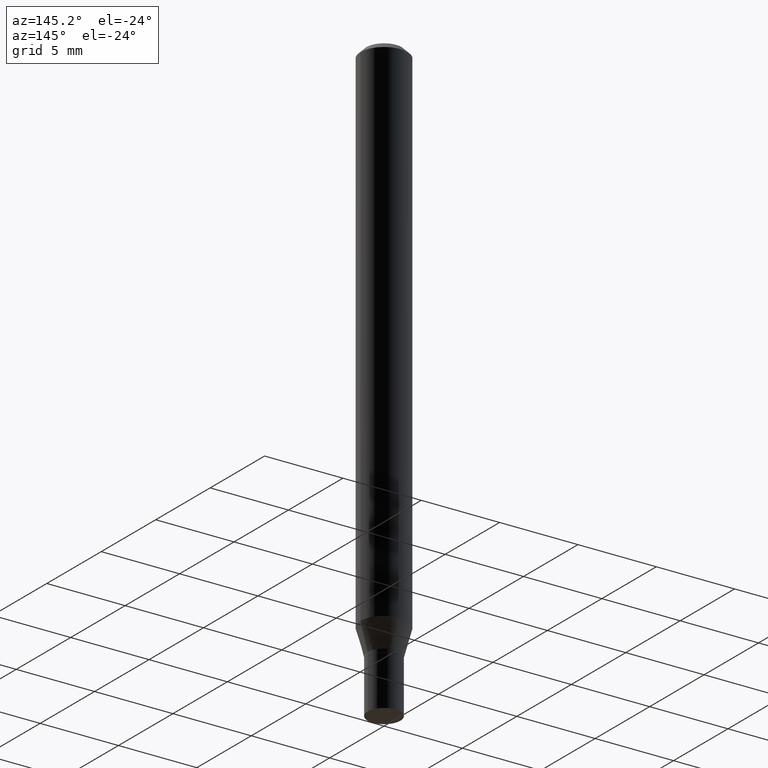
[diagram: clean part render]
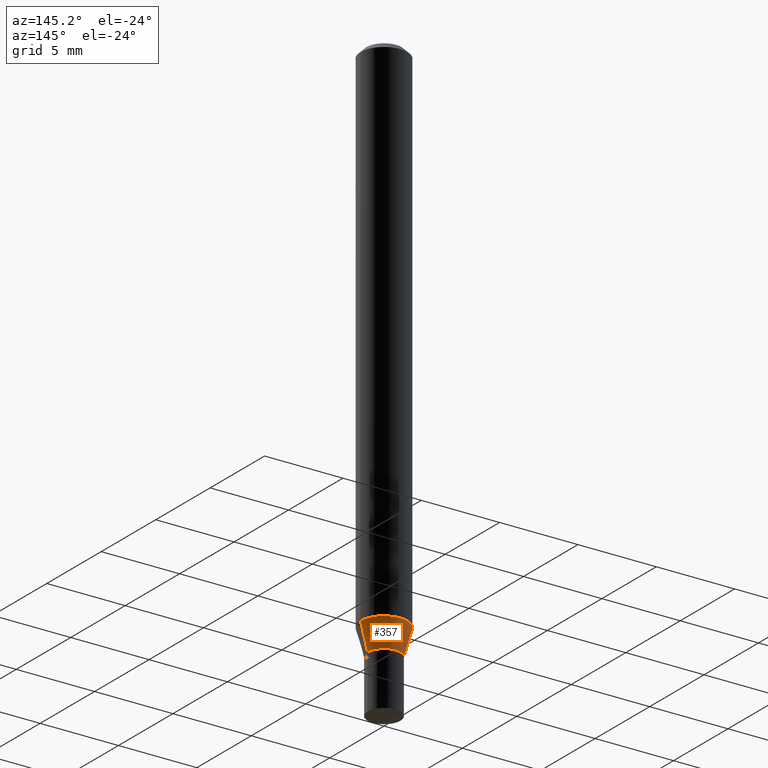
[diagram: same view with one face highlighted and labeled with its STEP entity id]
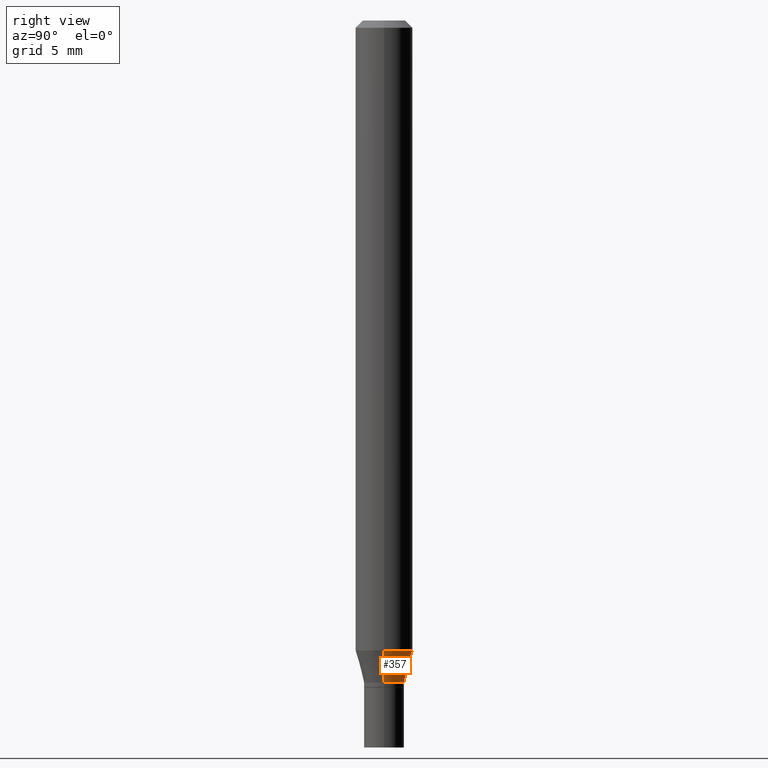
[diagram: same view with one face highlighted and labeled with its STEP entity id]
A machine part, auxiliary view. The second image highlights one B-rep face of the part: STEP entity #357.
A second angle (right view) of the same face is appended — the face is thin or edge-on in the first view.
In plain terms, the highlighted conical surface has half-angle 15 deg.
Its self-contained STEP definition (entity closure, byte-faithful):
#10 = DIRECTION ( 'NONE',  ( -0.2588190451025217387, 5.211531920934551042E-15, 0.9659258262890679791 ) ) ;
#11 = CARTESIAN_POINT ( 'NONE',  ( 3.178724777524041310E-29, -4.538376532946583262E-15, -1.299842700706030918 ) ) ;
#16 = LINE ( 'NONE', #411, #347 ) ;
#58 = EDGE_CURVE ( 'NONE', #437, #228, #16, .T. ) ;
#77 = CIRCLE ( 'NONE', #163, 0.05904999999999999832 ) ;
#109 = VECTOR ( 'NONE', #10, 39.37007874015748854 ) ;
#111 = CARTESIAN_POINT ( 'NONE',  ( -0.04134999999999992154, -4.297002993484647567E-15, -1.365900000000000114 ) ) ;
#122 = DIRECTION ( 'NONE',  ( 1.000000000000000000, -6.982962677686262766E-15, 0.000000000000000000 ) ) ;
#125 = LINE ( 'NONE', #184, #109 ) ;
#160 = EDGE_CURVE ( 'NONE', #228, #254, #77, .T. ) ;
#163 = AXIS2_PLACEMENT_3D ( 'NONE', #11, #192, #349 ) ;
#168 = AXIS2_PLACEMENT_3D ( 'NONE', #170, #289, #397 ) ;
#170 = CARTESIAN_POINT ( 'NONE',  ( 3.340265842368278094E-29, -4.769014360725852776E-15, -1.365900000000000114 ) ) ;
#178 = CARTESIAN_POINT ( 'NONE',  ( 0.05904999999999999832, -4.950720479063956605E-15, -1.299842700706030918 ) ) ;
#184 = CARTESIAN_POINT ( 'NONE',  ( -0.04134999999999992154, -4.475204939489051364E-15, -1.365900000000000114 ) ) ;
#192 = DIRECTION ( 'NONE',  ( -2.445468806185136597E-29, 3.491481338843145583E-15, 1.000000000000000000 ) ) ;
#193 = EDGE_CURVE ( 'NONE', #437, #204, #267, .T. ) ;
#204 = VERTEX_POINT ( 'NONE', #111 ) ;
#226 = CARTESIAN_POINT ( 'NONE',  ( 0.04134999999999992154, -5.057759867448178932E-15, -1.365900000000000114 ) ) ;
#228 = VERTEX_POINT ( 'NONE', #178 ) ;
#235 = DIRECTION ( 'NONE',  ( 0.2588190451025217387, 1.565188264969619207E-15, 0.9659258262890679791 ) ) ;
#254 = VERTEX_POINT ( 'NONE', #429 ) ;
#267 = CIRCLE ( 'NONE', #168, 0.04134999999999992154 ) ;
#272 = EDGE_LOOP ( 'NONE', ( #304, #359, #455, #344 ) ) ;
#277 = AXIS2_PLACEMENT_3D ( 'NONE', #405, #449, #122 ) ;
#289 = DIRECTION ( 'NONE',  ( -2.445468806185136597E-29, 3.491481338843145583E-15, 1.000000000000000000 ) ) ;
#304 = ORIENTED_EDGE ( 'NONE', *, *, #193, .T. ) ;
#344 = ORIENTED_EDGE ( 'NONE', *, *, #58, .F. ) ;
#347 = VECTOR ( 'NONE', #235, 39.37007874015748854 ) ;
#349 = DIRECTION ( 'NONE',  ( 1.000000000000000000, -6.982962677686273021E-15, 0.000000000000000000 ) ) ;
#357 = ADVANCED_FACE ( 'NONE', ( #446 ), #426, .T. ) ;
#359 = ORIENTED_EDGE ( 'NONE', *, *, #443, .T. ) ;
#397 = DIRECTION ( 'NONE',  ( 1.000000000000000000, -6.982962677686262766E-15, 0.000000000000000000 ) ) ;
#405 = CARTESIAN_POINT ( 'NONE',  ( 3.340265842368278094E-29, -4.769014360725852776E-15, -1.365900000000000114 ) ) ;
#411 = CARTESIAN_POINT ( 'NONE',  ( 0.04134999999999992154, -5.057759867448178932E-15, -1.365900000000000114 ) ) ;
#426 = CONICAL_SURFACE ( 'NONE', #277, 0.04134999999999992154, 0.2617993877991504625 ) ;
#429 = CARTESIAN_POINT ( 'NONE',  ( -0.05904999999999999832, -4.118801047480243769E-15, -1.299842700706030918 ) ) ;
#437 = VERTEX_POINT ( 'NONE', #226 ) ;
#443 = EDGE_CURVE ( 'NONE', #204, #254, #125, .T. ) ;
#446 = FACE_OUTER_BOUND ( 'NONE', #272, .T. ) ;
#449 = DIRECTION ( 'NONE',  ( -2.445468806185136597E-29, 3.491481338843145583E-15, 1.000000000000000000 ) ) ;
#455 = ORIENTED_EDGE ( 'NONE', *, *, #160, .F. ) ;